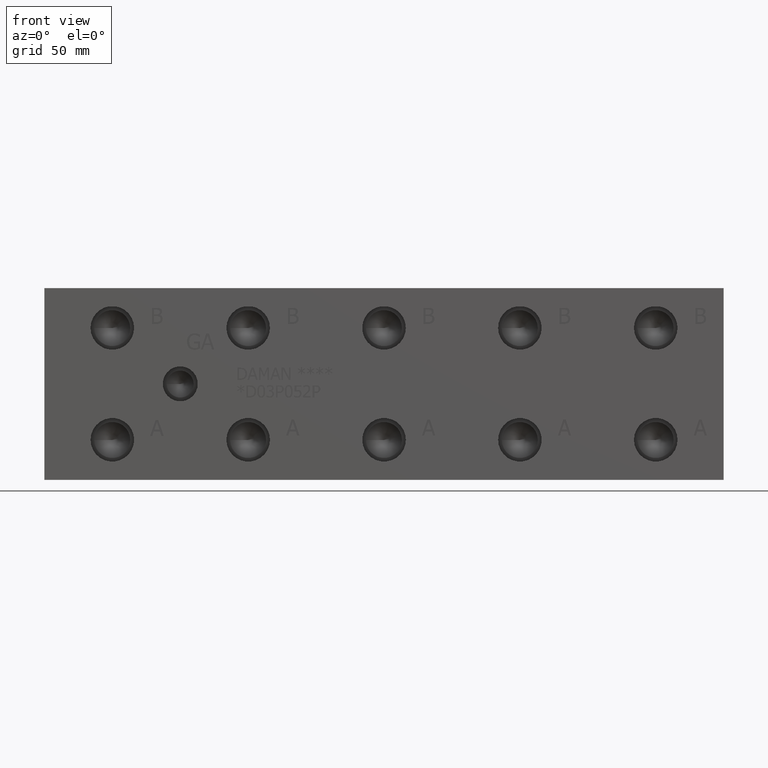
[diagram: clean part render]
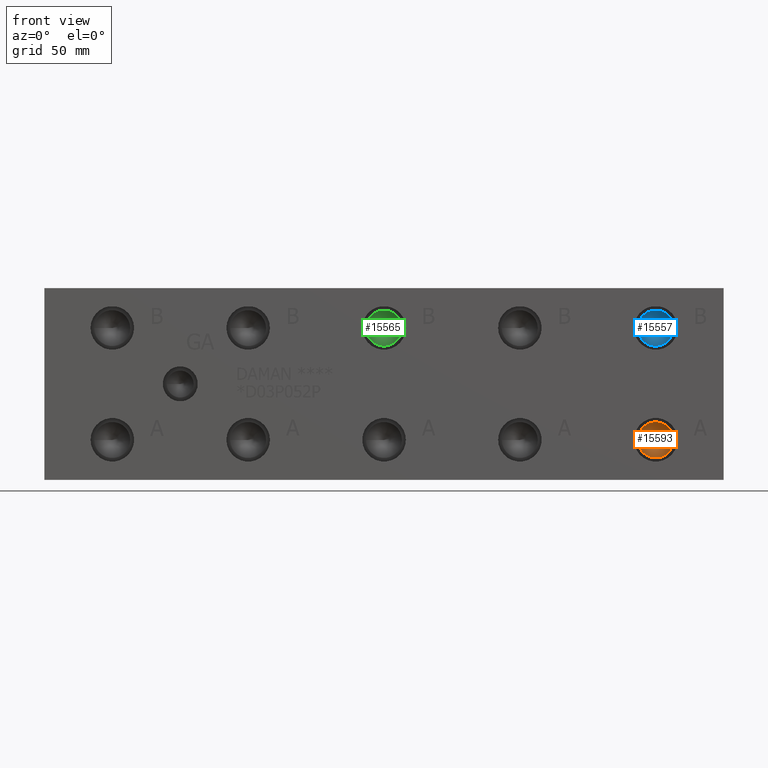
[diagram: same view with three faces highlighted in distinct colors, each labeled with its STEP entity id]
A machine part, front view with three faces highlighted in distinct colors.
Their STEP definitions:

[orange] entity #15593 — the highlighted conical surface has half-angle 60 deg.
#135=CONICAL_SURFACE('',#16346,3.57505,1.0471975511966);
#309=CIRCLE('',#16347,7.1501);
#310=CIRCLE('',#16348,7.1501);
#1831=FACE_OUTER_BOUND('',#2738,.T.);
#2738=EDGE_LOOP('',(#13400,#13401,#13402,#13403));
#4224=LINE('',#26395,#5619);
#5619=VECTOR('',#19215,3.57505);
#7362=VERTEX_POINT('',#26391);
#7363=VERTEX_POINT('',#26392);
#7364=VERTEX_POINT('',#26394);
#9459=EDGE_CURVE('',#7362,#7363,#309,.T.);
#9460=EDGE_CURVE('',#7363,#7364,#4224,.T.);
#9461=EDGE_CURVE('',#7363,#7362,#310,.T.);
#13400=ORIENTED_EDGE('',*,*,#9459,.T.);
#13401=ORIENTED_EDGE('',*,*,#9460,.T.);
#13402=ORIENTED_EDGE('',*,*,#9460,.F.);
#13403=ORIENTED_EDGE('',*,*,#9461,.T.);
#15593=ADVANCED_FACE('',(#1831),#135,.F.);
#16346=AXIS2_PLACEMENT_3D('',#26390,#19211,#19212);
#16347=AXIS2_PLACEMENT_3D('',#26393,#19213,#19214);
#16348=AXIS2_PLACEMENT_3D('',#26396,#19216,#19217);
#19211=DIRECTION('center_axis',(0.,-1.,0.));
#19212=DIRECTION('ref_axis',(1.,0.,0.));
#19213=DIRECTION('center_axis',(0.,-1.,0.));
#19214=DIRECTION('ref_axis',(1.,0.,0.));
#19215=DIRECTION('',(0.866025403784439,0.5,1.06057523872491E-16));
#19216=DIRECTION('center_axis',(0.,-1.,0.));
#19217=DIRECTION('ref_axis',(1.,0.,0.));
#26390=CARTESIAN_POINT('Origin',(242.88496,14.2116660798664,15.875));
#26391=CARTESIAN_POINT('',(250.03506,12.14761,15.875));
#26392=CARTESIAN_POINT('',(235.73486,12.14761,15.875));
#26393=CARTESIAN_POINT('Origin',(242.88496,12.14761,15.875));
#26394=CARTESIAN_POINT('',(242.88496,16.2757221597327,15.875));
#26395=CARTESIAN_POINT('',(239.30991,14.2116660798664,15.875));
#26396=CARTESIAN_POINT('Origin',(242.88496,12.14761,15.875));

[blue] entity #15557 — the highlighted conical surface has half-angle 60 deg.
#126=CONICAL_SURFACE('',#16265,3.57505,1.0471975511966);
#264=CIRCLE('',#16266,7.1501);
#265=CIRCLE('',#16267,7.1501);
#1795=FACE_OUTER_BOUND('',#2693,.T.);
#2693=EDGE_LOOP('',(#13238,#13239,#13240,#13241));
#4197=LINE('',#26233,#5592);
#5592=VECTOR('',#19026,3.57505);
#7308=VERTEX_POINT('',#26229);
#7309=VERTEX_POINT('',#26230);
#7310=VERTEX_POINT('',#26232);
#9387=EDGE_CURVE('',#7308,#7309,#264,.T.);
#9388=EDGE_CURVE('',#7309,#7310,#4197,.T.);
#9389=EDGE_CURVE('',#7309,#7308,#265,.T.);
#13238=ORIENTED_EDGE('',*,*,#9387,.T.);
#13239=ORIENTED_EDGE('',*,*,#9388,.T.);
#13240=ORIENTED_EDGE('',*,*,#9388,.F.);
#13241=ORIENTED_EDGE('',*,*,#9389,.T.);
#15557=ADVANCED_FACE('',(#1795),#126,.F.);
#16265=AXIS2_PLACEMENT_3D('',#26228,#19022,#19023);
#16266=AXIS2_PLACEMENT_3D('',#26231,#19024,#19025);
#16267=AXIS2_PLACEMENT_3D('',#26234,#19027,#19028);
#19022=DIRECTION('center_axis',(0.,-1.,0.));
#19023=DIRECTION('ref_axis',(1.,0.,0.));
#19024=DIRECTION('center_axis',(0.,-1.,0.));
#19025=DIRECTION('ref_axis',(1.,0.,0.));
#19026=DIRECTION('',(0.866025403784439,0.5,1.06057523872491E-16));
#19027=DIRECTION('center_axis',(0.,-1.,0.));
#19028=DIRECTION('ref_axis',(1.,0.,0.));
#26228=CARTESIAN_POINT('Origin',(242.8748,14.2116660798664,60.325));
#26229=CARTESIAN_POINT('',(250.0249,12.14761,60.325));
#26230=CARTESIAN_POINT('',(235.7247,12.14761,60.325));
#26231=CARTESIAN_POINT('Origin',(242.8748,12.14761,60.325));
#26232=CARTESIAN_POINT('',(242.8748,16.2757221597327,60.325));
#26233=CARTESIAN_POINT('',(239.29975,14.2116660798664,60.325));
#26234=CARTESIAN_POINT('Origin',(242.8748,12.14761,60.325));

[green] entity #15565 — the highlighted conical surface has half-angle 60 deg.
#128=CONICAL_SURFACE('',#16283,3.57505,1.0471975511966);
#274=CIRCLE('',#16284,7.1501);
#275=CIRCLE('',#16285,7.1501);
#1803=FACE_OUTER_BOUND('',#2703,.T.);
#2703=EDGE_LOOP('',(#13274,#13275,#13276,#13277));
#4203=LINE('',#26269,#5598);
#5598=VECTOR('',#19068,3.57505);
#7320=VERTEX_POINT('',#26265);
#7321=VERTEX_POINT('',#26266);
#7322=VERTEX_POINT('',#26268);
#9403=EDGE_CURVE('',#7320,#7321,#274,.T.);
#9404=EDGE_CURVE('',#7321,#7322,#4203,.T.);
#9405=EDGE_CURVE('',#7321,#7320,#275,.T.);
#13274=ORIENTED_EDGE('',*,*,#9403,.T.);
#13275=ORIENTED_EDGE('',*,*,#9404,.T.);
#13276=ORIENTED_EDGE('',*,*,#9404,.F.);
#13277=ORIENTED_EDGE('',*,*,#9405,.T.);
#15565=ADVANCED_FACE('',(#1803),#128,.F.);
#16283=AXIS2_PLACEMENT_3D('',#26264,#19064,#19065);
#16284=AXIS2_PLACEMENT_3D('',#26267,#19066,#19067);
#16285=AXIS2_PLACEMENT_3D('',#26270,#19069,#19070);
#19064=DIRECTION('center_axis',(0.,-1.,0.));
#19065=DIRECTION('ref_axis',(1.,0.,0.));
#19066=DIRECTION('center_axis',(0.,-1.,0.));
#19067=DIRECTION('ref_axis',(1.,0.,0.));
#19068=DIRECTION('',(0.866025403784439,0.5,1.06057523872491E-16));
#19069=DIRECTION('center_axis',(0.,-1.,0.));
#19070=DIRECTION('ref_axis',(1.,0.,0.));
#26264=CARTESIAN_POINT('Origin',(134.9248,14.2116660798664,60.325));
#26265=CARTESIAN_POINT('',(142.0749,12.14761,60.325));
#26266=CARTESIAN_POINT('',(127.7747,12.14761,60.325));
#26267=CARTESIAN_POINT('Origin',(134.9248,12.14761,60.325));
#26268=CARTESIAN_POINT('',(134.9248,16.2757221597327,60.325));
#26269=CARTESIAN_POINT('',(131.34975,14.2116660798664,60.325));
#26270=CARTESIAN_POINT('Origin',(134.9248,12.14761,60.325));